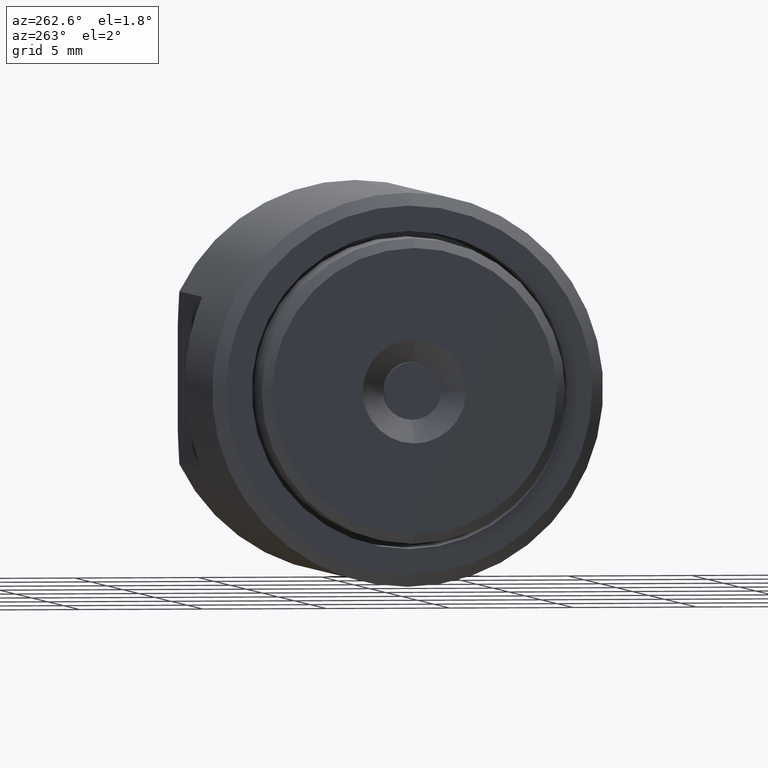
[diagram: clean part render]
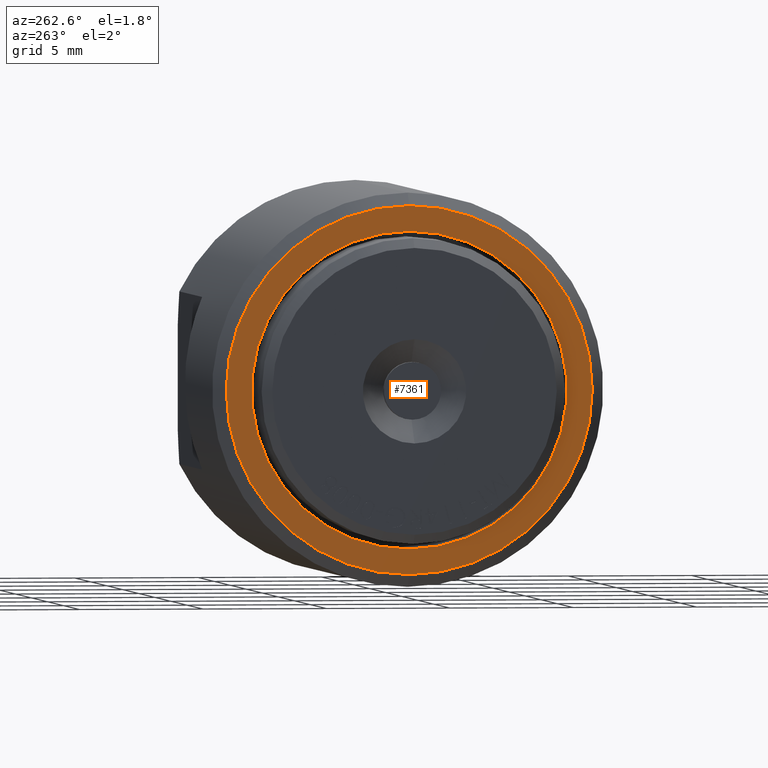
[diagram: same view with one face highlighted and labeled with its STEP entity id]
A machine part, auxiliary view. The second image highlights one B-rep face of the part: STEP entity #7361.
In plain terms, the highlighted planar face has unit normal (-1, 0, -0).
Its self-contained STEP definition (entity closure, byte-faithful):
#262 = CARTESIAN_POINT ( 'NONE',  ( -0.09149999999999999800, 0.0000000000000000000, 0.0000000000000000000 ) ) ;
#534 = EDGE_CURVE ( 'NONE', #11341, #3880, #6602, .T. ) ;
#789 = EDGE_CURVE ( 'NONE', #1346, #1236, #4567, .T. ) ;
#1159 = DIRECTION ( 'NONE',  ( -1.000000000000000000, -0.0000000000000000000, -0.0000000000000000000 ) ) ;
#1236 = VERTEX_POINT ( 'NONE', #3706 ) ;
#1332 = AXIS2_PLACEMENT_3D ( 'NONE', #7111, #1159, #9921 ) ;
#1338 = DIRECTION ( 'NONE',  ( -1.000000000000000000, -0.0000000000000000000, -0.0000000000000000000 ) ) ;
#1346 = VERTEX_POINT ( 'NONE', #4949 ) ;
#1393 = CARTESIAN_POINT ( 'NONE',  ( -0.09149999999999999800, 0.0000000000000000000, -0.2919999999999999818 ) ) ;
#1400 = EDGE_CURVE ( 'NONE', #3880, #11341, #11882, .T. ) ;
#1677 = CARTESIAN_POINT ( 'NONE',  ( -0.09149999999999999800, 3.698433333425005892E-17, 0.2919999999999999818 ) ) ;
#1865 = AXIS2_PLACEMENT_3D ( 'NONE', #262, #10896, #4332 ) ;
#1970 = DIRECTION ( 'NONE',  ( -1.000000000000000000, -0.0000000000000000000, -0.0000000000000000000 ) ) ;
#2171 = DIRECTION ( 'NONE',  ( 0.0000000000000000000, 0.0000000000000000000, 1.000000000000000000 ) ) ;
#3661 = ORIENTED_EDGE ( 'NONE', *, *, #1400, .T. ) ;
#3706 = CARTESIAN_POINT ( 'NONE',  ( -0.09149999999999999800, 0.0000000000000000000, 0.2514999999999999458 ) ) ;
#3880 = VERTEX_POINT ( 'NONE', #1677 ) ;
#4096 = CIRCLE ( 'NONE', #5302, 0.2514999999999999458 ) ;
#4332 = DIRECTION ( 'NONE',  ( -0.0000000000000000000, 0.0000000000000000000, 1.000000000000000000 ) ) ;
#4564 = EDGE_LOOP ( 'NONE', ( #7012, #9378 ) ) ;
#4567 = CIRCLE ( 'NONE', #7202, 0.2514999999999999458 ) ;
#4949 = CARTESIAN_POINT ( 'NONE',  ( -0.09149999999999999800, 3.079986699855593275E-17, -0.2514999999999999458 ) ) ;
#5302 = AXIS2_PLACEMENT_3D ( 'NONE', #8063, #1338, #2171 ) ;
#6040 = FACE_BOUND ( 'NONE', #4564, .T. ) ;
#6055 = DIRECTION ( 'NONE',  ( 0.0000000000000000000, 0.0000000000000000000, 1.000000000000000000 ) ) ;
#6602 = CIRCLE ( 'NONE', #7412, 0.2919999999999999818 ) ;
#7012 = ORIENTED_EDGE ( 'NONE', *, *, #7635, .F. ) ;
#7111 = CARTESIAN_POINT ( 'NONE',  ( -0.09149999999999999800, 0.0000000000000000000, 0.0000000000000000000 ) ) ;
#7202 = AXIS2_PLACEMENT_3D ( 'NONE', #9884, #10848, #6055 ) ;
#7361 = ADVANCED_FACE ( 'NONE', ( #10954, #6040 ), #12101, .T. ) ;
#7412 = AXIS2_PLACEMENT_3D ( 'NONE', #7921, #1970, #8811 ) ;
#7635 = EDGE_CURVE ( 'NONE', #1236, #1346, #4096, .T. ) ;
#7921 = CARTESIAN_POINT ( 'NONE',  ( -0.09149999999999999800, 0.0000000000000000000, 0.0000000000000000000 ) ) ;
#8063 = CARTESIAN_POINT ( 'NONE',  ( -0.09149999999999999800, 0.0000000000000000000, 0.0000000000000000000 ) ) ;
#8401 = EDGE_LOOP ( 'NONE', ( #12225, #3661 ) ) ;
#8811 = DIRECTION ( 'NONE',  ( 0.0000000000000000000, 0.0000000000000000000, 1.000000000000000000 ) ) ;
#9378 = ORIENTED_EDGE ( 'NONE', *, *, #789, .F. ) ;
#9884 = CARTESIAN_POINT ( 'NONE',  ( -0.09149999999999999800, 0.0000000000000000000, 0.0000000000000000000 ) ) ;
#9921 = DIRECTION ( 'NONE',  ( 0.0000000000000000000, 0.0000000000000000000, 1.000000000000000000 ) ) ;
#10848 = DIRECTION ( 'NONE',  ( -1.000000000000000000, -0.0000000000000000000, -0.0000000000000000000 ) ) ;
#10896 = DIRECTION ( 'NONE',  ( -1.000000000000000000, 0.0000000000000000000, -0.0000000000000000000 ) ) ;
#10954 = FACE_OUTER_BOUND ( 'NONE', #8401, .T. ) ;
#11341 = VERTEX_POINT ( 'NONE', #1393 ) ;
#11882 = CIRCLE ( 'NONE', #1332, 0.2919999999999999818 ) ;
#12101 = PLANE ( 'NONE',  #1865 ) ;
#12225 = ORIENTED_EDGE ( 'NONE', *, *, #534, .T. ) ;